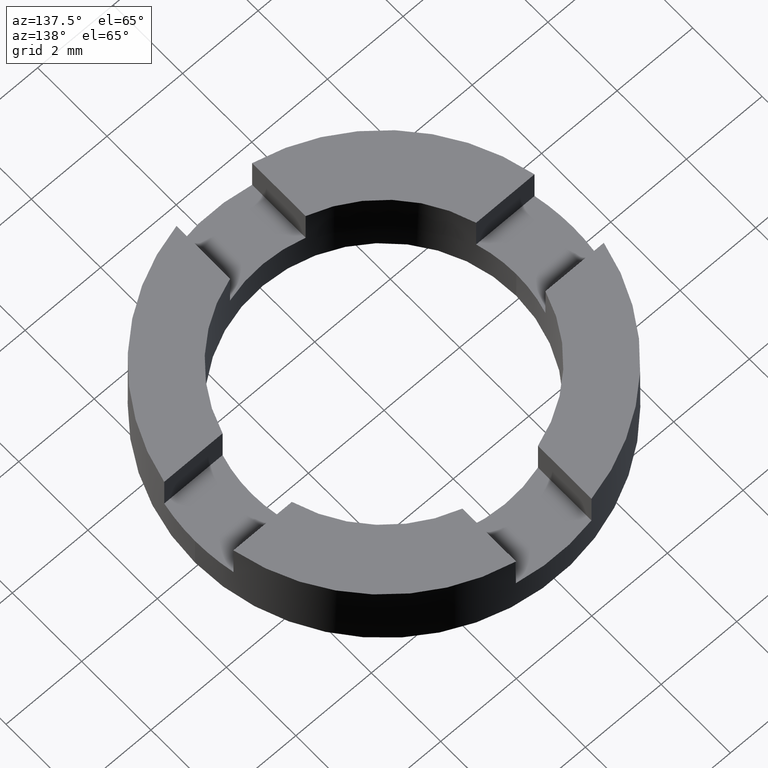
[diagram: clean part render]
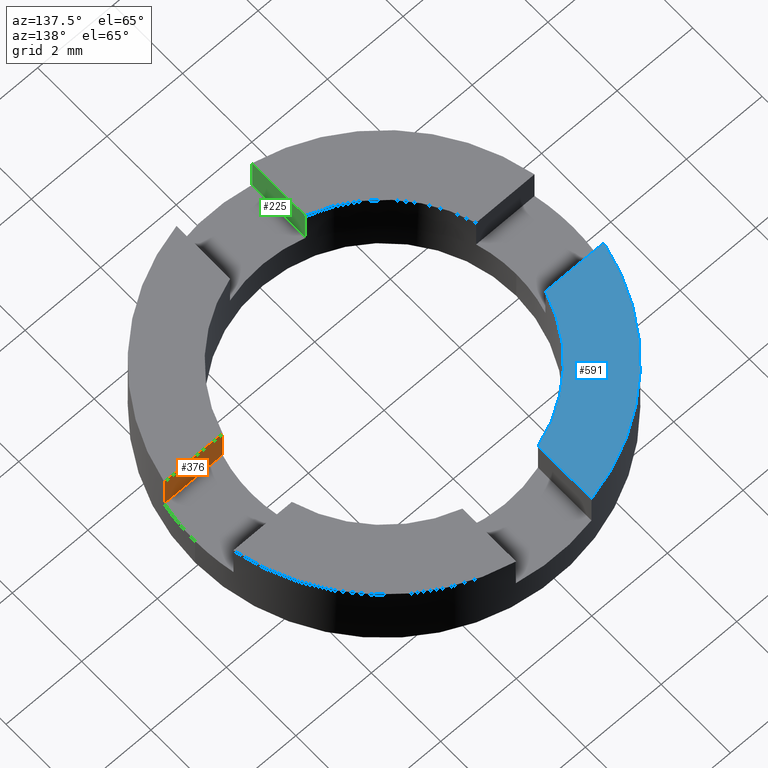
[diagram: same view with three faces highlighted in distinct colors, each labeled with its STEP entity id]
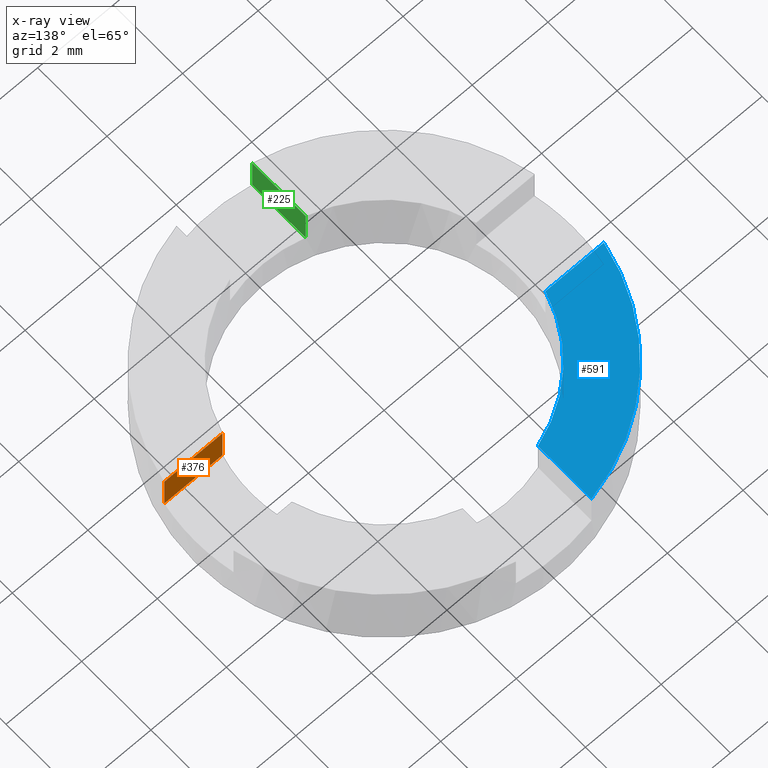
[diagram: x-ray of the same camera — body ghosted, the three highlighted faces saturated]
A machine part, auxiliary view with three faces highlighted in distinct colors.
The next image is the same camera in x-ray (body ghosted, the three faces saturated) — at least one of them is partly hidden behind the body in this view.
Their STEP definitions:

[orange] entity #376 — the highlighted planar face has unit normal (0, -1, 0).
#34 = LINE ( 'NONE', #691, #488 ) ;
#57 = CARTESIAN_POINT ( 'NONE',  ( 3.354101966249698030, -0.9999999999999547029, 2.000000000000000000 ) ) ;
#79 = ORIENTED_EDGE ( 'NONE', *, *, #338, .F. ) ;
#86 = VECTOR ( 'NONE', #263, 1000.000000000000000 ) ;
#108 = CARTESIAN_POINT ( 'NONE',  ( 4.898979485566365533, -0.9999999999999544809, 1.000000000000000000 ) ) ;
#124 = CARTESIAN_POINT ( 'NONE',  ( 3.354101966249698030, -0.9999999999999547029, 2.000000000000000000 ) ) ;
#145 = ORIENTED_EDGE ( 'NONE', *, *, #240, .T. ) ;
#148 = DIRECTION ( 'NONE',  ( 1.000000000000000000, 1.279323200775837468E-16, 0.000000000000000000 ) ) ;
#210 = CARTESIAN_POINT ( 'NONE',  ( 3.305037895306199847, -0.9999999999999547029, 1.000000000000000000 ) ) ;
#219 = DIRECTION ( 'NONE',  ( 0.000000000000000000, 0.000000000000000000, 1.000000000000000000 ) ) ;
#227 = ORIENTED_EDGE ( 'NONE', *, *, #385, .T. ) ;
#240 = EDGE_CURVE ( 'NONE', #480, #577, #301, .T. ) ;
#258 = AXIS2_PLACEMENT_3D ( 'NONE', #210, #446, #442 ) ;
#263 = DIRECTION ( 'NONE',  ( 1.000000000000000000, 1.279323200775837468E-16, 0.000000000000000000 ) ) ;
#289 = VECTOR ( 'NONE', #425, 1000.000000000000000 ) ;
#301 = LINE ( 'NONE', #124, #289 ) ;
#327 = VERTEX_POINT ( 'NONE', #624 ) ;
#338 = EDGE_CURVE ( 'NONE', #480, #505, #675, .T. ) ;
#359 = CARTESIAN_POINT ( 'NONE',  ( 3.354101966249698030, -0.9999999999999547029, 1.000000000000000000 ) ) ;
#376 = ADVANCED_FACE ( 'NONE', ( #679 ), #747, .F. ) ;
#384 = EDGE_LOOP ( 'NONE', ( #79, #145, #227, #476 ) ) ;
#385 = EDGE_CURVE ( 'NONE', #577, #327, #565, .T. ) ;
#388 = CARTESIAN_POINT ( 'NONE',  ( 3.305037895306199847, -0.9999999999999547029, 1.000000000000000000 ) ) ;
#425 = DIRECTION ( 'NONE',  ( 0.000000000000000000, 0.000000000000000000, 1.000000000000000000 ) ) ;
#442 = DIRECTION ( 'NONE',  ( 1.000000000000000000, 1.279323200775837468E-16, 0.000000000000000000 ) ) ;
#446 = DIRECTION ( 'NONE',  ( 1.279323200775837468E-16, -1.000000000000000000, 0.000000000000000000 ) ) ;
#476 = ORIENTED_EDGE ( 'NONE', *, *, #749, .F. ) ;
#480 = VERTEX_POINT ( 'NONE', #359 ) ;
#488 = VECTOR ( 'NONE', #219, 1000.000000000000000 ) ;
#505 = VERTEX_POINT ( 'NONE', #108 ) ;
#565 = LINE ( 'NONE', #688, #649 ) ;
#577 = VERTEX_POINT ( 'NONE', #57 ) ;
#624 = CARTESIAN_POINT ( 'NONE',  ( 4.898979485566365533, -0.9999999999999544809, 2.000000000000000000 ) ) ;
#649 = VECTOR ( 'NONE', #148, 1000.000000000000000 ) ;
#675 = LINE ( 'NONE', #388, #86 ) ;
#679 = FACE_OUTER_BOUND ( 'NONE', #384, .T. ) ;
#688 = CARTESIAN_POINT ( 'NONE',  ( 3.305037895306199847, -0.9999999999999547029, 2.000000000000000000 ) ) ;
#691 = CARTESIAN_POINT ( 'NONE',  ( 4.898979485566365533, -0.9999999999999544809, 2.000000000000000000 ) ) ;
#747 = PLANE ( 'NONE',  #258 ) ;
#749 = EDGE_CURVE ( 'NONE', #505, #327, #34, .T. ) ;

[blue] entity #591 — the highlighted planar face has unit normal (0, 0, 1).
#35 = VECTOR ( 'NONE', #132, 1000.000000000000000 ) ;
#36 = VECTOR ( 'NONE', #328, 1000.000000000000000 ) ;
#64 = DIRECTION ( 'NONE',  ( 1.000000000000000000, 0.000000000000000000, -0.000000000000000000 ) ) ;
#78 = DIRECTION ( 'NONE',  ( 0.000000000000000000, 0.000000000000000000, 1.000000000000000000 ) ) ;
#106 = ORIENTED_EDGE ( 'NONE', *, *, #646, .F. ) ;
#112 = CARTESIAN_POINT ( 'NONE',  ( -3.354101966249774858, 0.9999999999996979083, 2.000000000000000000 ) ) ;
#120 = AXIS2_PLACEMENT_3D ( 'NONE', #631, #78, #682 ) ;
#132 = DIRECTION ( 'NONE',  ( -1.000000000000000000, -2.558646401551675429E-16, 0.000000000000000000 ) ) ;
#136 = CIRCLE ( 'NONE', #665, 5.000000000000000000 ) ;
#144 = CARTESIAN_POINT ( 'NONE',  ( -4.898979485566417935, 0.9999999999996975752, 2.000000000000000000 ) ) ;
#194 = CARTESIAN_POINT ( 'NONE',  ( -1.000000000000000000, 4.898979485566356651, 2.000000000000000000 ) ) ;
#206 = VERTEX_POINT ( 'NONE', #194 ) ;
#228 = DIRECTION ( 'NONE',  ( 1.000000000000000000, 0.000000000000000000, 0.000000000000000000 ) ) ;
#272 = LINE ( 'NONE', #455, #36 ) ;
#285 = CARTESIAN_POINT ( 'NONE',  ( 0.000000000000000000, 0.000000000000000000, 2.000000000000000000 ) ) ;
#321 = VERTEX_POINT ( 'NONE', #144 ) ;
#325 = ORIENTED_EDGE ( 'NONE', *, *, #471, .T. ) ;
#328 = DIRECTION ( 'NONE',  ( -0.000000000000000000, -1.000000000000000000, -0.000000000000000000 ) ) ;
#341 = AXIS2_PLACEMENT_3D ( 'NONE', #706, #647, #64 ) ;
#369 = CARTESIAN_POINT ( 'NONE',  ( -1.000000000000000000, 3.354101966249684708, 2.000000000000000000 ) ) ;
#411 = EDGE_CURVE ( 'NONE', #485, #321, #499, .T. ) ;
#455 = CARTESIAN_POINT ( 'NONE',  ( -1.000000000000000000, 3.305037895305897422, 2.000000000000000000 ) ) ;
#460 = CIRCLE ( 'NONE', #120, 3.500000000000000000 ) ;
#466 = PLANE ( 'NONE',  #341 ) ;
#471 = EDGE_CURVE ( 'NONE', #206, #321, #136, .T. ) ;
#473 = DIRECTION ( 'NONE',  ( 0.000000000000000000, 0.000000000000000000, 1.000000000000000000 ) ) ;
#485 = VERTEX_POINT ( 'NONE', #112 ) ;
#499 = LINE ( 'NONE', #737, #35 ) ;
#575 = ORIENTED_EDGE ( 'NONE', *, *, #757, .F. ) ;
#591 = ADVANCED_FACE ( 'NONE', ( #765 ), #466, .T. ) ;
#596 = EDGE_LOOP ( 'NONE', ( #575, #325, #634, #106 ) ) ;
#631 = CARTESIAN_POINT ( 'NONE',  ( 0.000000000000000000, 0.000000000000000000, 2.000000000000000000 ) ) ;
#634 = ORIENTED_EDGE ( 'NONE', *, *, #411, .F. ) ;
#644 = VERTEX_POINT ( 'NONE', #369 ) ;
#646 = EDGE_CURVE ( 'NONE', #644, #485, #460, .T. ) ;
#647 = DIRECTION ( 'NONE',  ( 0.000000000000000000, 0.000000000000000000, 1.000000000000000000 ) ) ;
#665 = AXIS2_PLACEMENT_3D ( 'NONE', #285, #473, #228 ) ;
#682 = DIRECTION ( 'NONE',  ( 1.000000000000000000, 0.000000000000000000, 0.000000000000000000 ) ) ;
#706 = CARTESIAN_POINT ( 'NONE',  ( 0.000000000000000000, 0.000000000000000000, 2.000000000000000000 ) ) ;
#737 = CARTESIAN_POINT ( 'NONE',  ( -3.305037895305853013, 0.9999999999996979083, 2.000000000000000000 ) ) ;
#757 = EDGE_CURVE ( 'NONE', #206, #644, #272, .T. ) ;
#765 = FACE_OUTER_BOUND ( 'NONE', #596, .T. ) ;

[green] entity #225 — the highlighted planar face has unit normal (-1, -0, 0).
#2 = CARTESIAN_POINT ( 'NONE',  ( -0.9999999999996526112, -3.354101966249788180, 2.000000000000000000 ) ) ;
#8 = CARTESIAN_POINT ( 'NONE',  ( -0.9999999999996526112, -3.305037895306154550, 1.000000000000000000 ) ) ;
#10 = VERTEX_POINT ( 'NONE', #339 ) ;
#13 = ORIENTED_EDGE ( 'NONE', *, *, #637, .F. ) ;
#18 = VECTOR ( 'NONE', #307, 1000.000000000000000 ) ;
#21 = DIRECTION ( 'NONE',  ( 1.279323200775837961E-16, -1.000000000000000000, 0.000000000000000000 ) ) ;
#29 = EDGE_LOOP ( 'NONE', ( #13, #769, #165, #620 ) ) ;
#41 = VERTEX_POINT ( 'NONE', #360 ) ;
#60 = EDGE_CURVE ( 'NONE', #374, #10, #364, .T. ) ;
#92 = EDGE_CURVE ( 'NONE', #264, #10, #356, .T. ) ;
#119 = PLANE ( 'NONE',  #340 ) ;
#165 = ORIENTED_EDGE ( 'NONE', *, *, #60, .T. ) ;
#182 = CARTESIAN_POINT ( 'NONE',  ( -0.9999999999996523892, -4.898979485566426817, 2.000000000000000000 ) ) ;
#196 = EDGE_CURVE ( 'NONE', #41, #374, #495, .T. ) ;
#223 = VECTOR ( 'NONE', #21, 1000.000000000000000 ) ;
#225 = ADVANCED_FACE ( 'NONE', ( #541 ), #119, .F. ) ;
#264 = VERTEX_POINT ( 'NONE', #605 ) ;
#288 = DIRECTION ( 'NONE',  ( 1.279323200775837961E-16, -1.000000000000000000, 0.000000000000000000 ) ) ;
#307 = DIRECTION ( 'NONE',  ( 0.000000000000000000, 0.000000000000000000, 1.000000000000000000 ) ) ;
#339 = CARTESIAN_POINT ( 'NONE',  ( -0.9999999999996523892, -4.898979485566426817, 2.000000000000000000 ) ) ;
#340 = AXIS2_PLACEMENT_3D ( 'NONE', #8, #657, #288 ) ;
#356 = LINE ( 'NONE', #182, #519 ) ;
#360 = CARTESIAN_POINT ( 'NONE',  ( -0.9999999999996526112, -3.354101966249788180, 1.000000000000000000 ) ) ;
#364 = LINE ( 'NONE', #660, #397 ) ;
#371 = DIRECTION ( 'NONE',  ( 0.000000000000000000, 0.000000000000000000, 1.000000000000000000 ) ) ;
#374 = VERTEX_POINT ( 'NONE', #560 ) ;
#397 = VECTOR ( 'NONE', #728, 1000.000000000000000 ) ;
#495 = LINE ( 'NONE', #2, #18 ) ;
#519 = VECTOR ( 'NONE', #371, 1000.000000000000000 ) ;
#541 = FACE_OUTER_BOUND ( 'NONE', #29, .T. ) ;
#560 = CARTESIAN_POINT ( 'NONE',  ( -0.9999999999996526112, -3.354101966249788180, 2.000000000000000000 ) ) ;
#605 = CARTESIAN_POINT ( 'NONE',  ( -0.9999999999996523892, -4.898979485566426817, 1.000000000000000000 ) ) ;
#620 = ORIENTED_EDGE ( 'NONE', *, *, #92, .F. ) ;
#637 = EDGE_CURVE ( 'NONE', #41, #264, #672, .T. ) ;
#657 = DIRECTION ( 'NONE',  ( -1.000000000000000000, -1.279323200775837961E-16, 0.000000000000000000 ) ) ;
#660 = CARTESIAN_POINT ( 'NONE',  ( -0.9999999999996526112, -3.305037895306154550, 2.000000000000000000 ) ) ;
#672 = LINE ( 'NONE', #745, #223 ) ;
#728 = DIRECTION ( 'NONE',  ( 1.279323200775837961E-16, -1.000000000000000000, 0.000000000000000000 ) ) ;
#745 = CARTESIAN_POINT ( 'NONE',  ( -0.9999999999996526112, -3.305037895306154550, 1.000000000000000000 ) ) ;
#769 = ORIENTED_EDGE ( 'NONE', *, *, #196, .T. ) ;